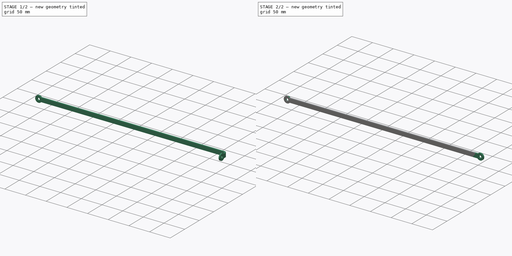
[diagram: build sequence overview — one tinted view per stage of 2, left to right]
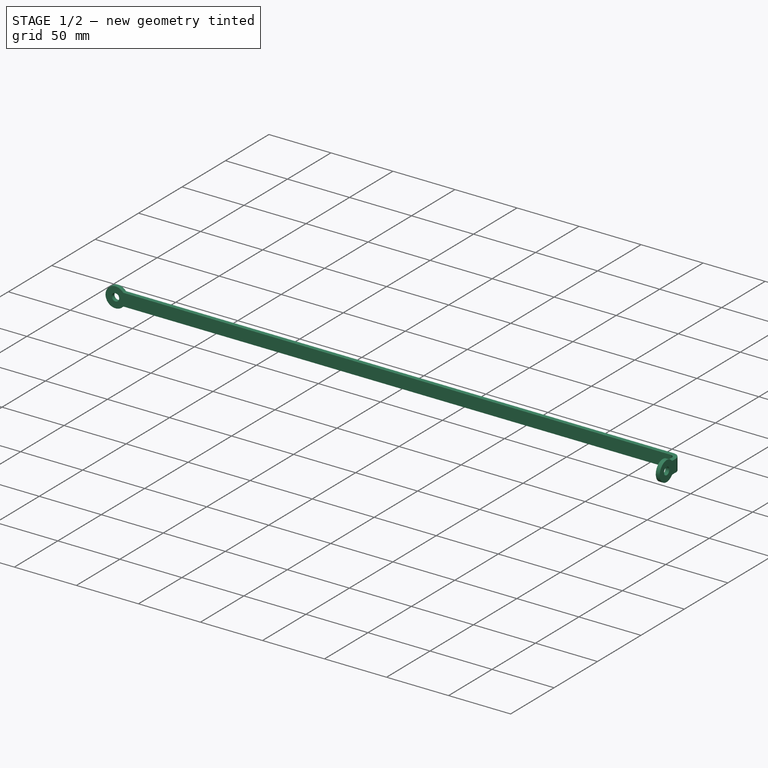
[diagram: stage 1 of 2 — iso view after this stage's code; geometry added in this stage tinted green]
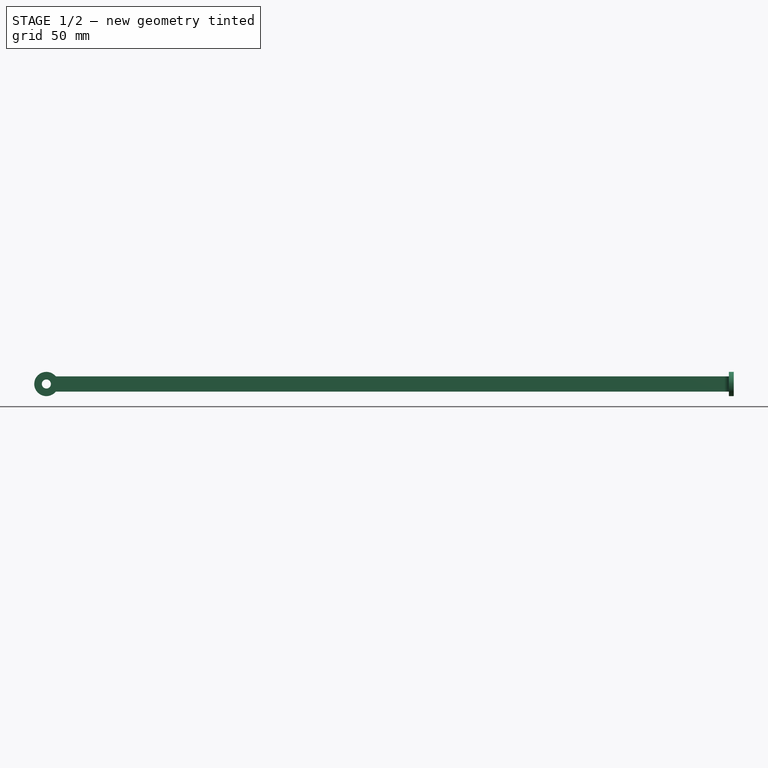
[diagram: stage 1 of 2 — front view after this stage's code; geometry added in this stage tinted green]
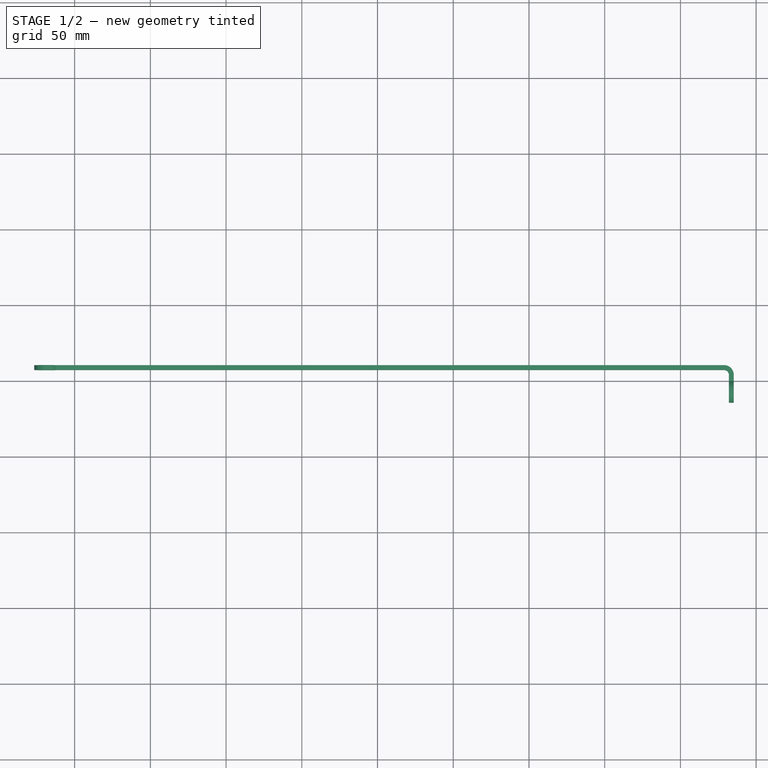
[diagram: stage 1 of 2 — top view after this stage's code; geometry added in this stage tinted green]
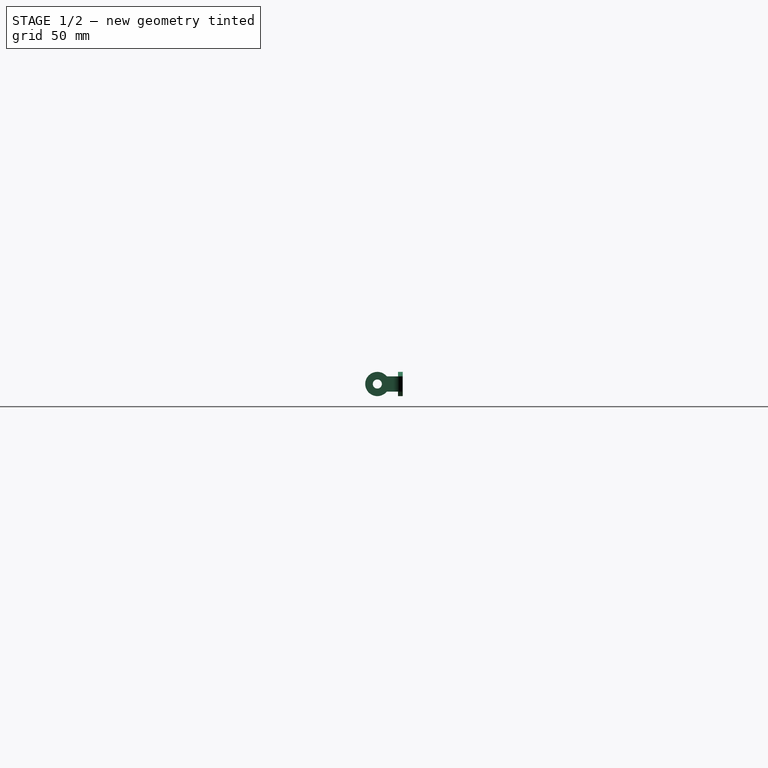
[diagram: stage 1 of 2 — right view after this stage's code; geometry added in this stage tinted green]
FCSTD DOCUMENT  (FreeCAD 1.0R38641 +468 (Git))
Label: bracket_bent
License: All rights reserved
LicenseURL: https://en.wikipedia.org/wiki/All_rights_reserved
objects: Sketcher::SketchObject×6, PartDesign::FeaturePython×3, PartDesign::SubShapeBinder×1, PartDesign::Body×1, Part::FeaturePython×1
note: 21 computed .brp shape members not serialized (recipe doc carries the construction recipe); baked Part::Feature solids carry a one-line shape summary decoded from their .brp
EXTERNAL_REF file=../../row.FCStd obj=Assembly
EXTERNAL_REF file=../dimensions.FCStd obj=VarSet

FEATURE [PartDesign::SubShapeBinder] Binder
  BindCopyOnChange = 0
  BindMode = 0
  ClaimChildren = false
  Context = -> Body [Binder.]
  Fuse = false
  MakeFace = true
  OffsetFill = false
  OffsetIntersection = false
  OffsetJoinType = 0
  OffsetOpenResult = false
  PartialLoad = false
  Refine = true
  Relative = true
  Support = -> [<external ../../row.FCStd>#Assembly]
  _Version = 2
FEATURE [Sketcher::SketchObject] Sketch
  ArcFitTolerance = 1e-06
  AttachmentOffset = pos=(0,0,30) rot=(0,0,1;0rad)
  AttachmentSupport = -> [Binder]
  ExternalGeometry = -> [Binder]
  FullyConstrained = true
  MakeInternals = false
  MapMode = 5
  Placement = pos=(0,157.227,-6.52e-14) rot=(0,0.707107,0.707107;3.14159rad)
  expr: Constraints[13] = dimensions#VarSet.FrameHoleDiameter
  expr: Constraints[14] = dimensions#VarSet.FrameMinWidth / 2
  expr: Constraints[15] = dimensions#VarSet.EnclosureCornerRadius
  expr: Constraints[5] = dimensions#VarSet.FrameMinWidth
  sketch-geometry (15):
    g0: LineSegment StartX=-428.854 StartY=-51.25 StartZ=0 EndX=1.8542 EndY=-51.25 EndZ=0
    g1: LineSegment StartX=1.8542 StartY=-61.25 StartZ=0 EndX=-428.854 EndY=-61.25 EndZ=0
    g2: ArcOfCircle CenterX=-445.651 CenterY=-56.25 CenterZ=0 NormalX=0 NormalY=0 NormalZ=1 AngleXU=0 Radius=8 StartAngle=0.739492 EndAngle=5.54369
    g3: ArcOfCircle CenterX=-438.854 CenterY=-50.05 CenterZ=0 NormalX=0 NormalY=0 NormalZ=1 AngleXU=0 Radius=1.2 StartAngle=3.88109 EndAngle=4.71239
    g4: ArcOfCircle CenterX=-438.854 CenterY=-62.45 CenterZ=0 NormalX=0 NormalY=0 NormalZ=1 AngleXU=0 Radius=1.2 StartAngle=1.5708 EndAngle=2.4021
    g5: ArcOfCircle CenterX=18.6513 CenterY=-56.25 CenterZ=0 NormalX=0 NormalY=0 NormalZ=1 AngleXU=0 Radius=8 StartAngle=3.88109 EndAngle=8.68529
    g6: ArcOfCircle CenterX=11.8542 CenterY=-62.45 CenterZ=0 NormalX=0 NormalY=0 NormalZ=1 AngleXU=0 Radius=1.2 StartAngle=0.739492 EndAngle=1.5708
    g7: ArcOfCircle CenterX=11.8542 CenterY=-50.05 CenterZ=0 NormalX=0 NormalY=0 NormalZ=1 AngleXU=0 Radius=1.2 StartAngle=4.71239 EndAngle=5.54369
    g8: Circle CenterX=18.6513 CenterY=-56.25 CenterZ=0 NormalX=0 NormalY=0 NormalZ=1 AngleXU=0 Radius=3
    g9: LineSegment StartX=-428.854 StartY=-51.25 StartZ=0 EndX=-438.854 EndY=-51.25 EndZ=0
    g10: LineSegment StartX=-428.854 StartY=-61.25 StartZ=0 EndX=-438.854 EndY=-61.25 EndZ=0
    g11: LineSegment StartX=1.8542 StartY=-51.25 StartZ=0 EndX=11.8542 EndY=-51.25 EndZ=0
    g12: LineSegment StartX=1.8542 StartY=-61.25 StartZ=0 EndX=11.8542 EndY=-61.25 EndZ=0
    g13: LineSegment [constr] StartX=-445.651 StartY=-56.25 StartZ=0 EndX=18.6513 EndY=-56.25 EndZ=0
    g14: Circle CenterX=-445.651 CenterY=-56.25 CenterZ=0 NormalX=0 NormalY=0 NormalZ=1 AngleXU=0 Radius=3
  constraints (38):
    c: PointOnObject(g0,g-3)
    c: PointOnObject(g0,g-4)
    c: Horizontal(g0)
    c: PointOnObject(g1,g-4)
    c: Horizontal(g1)
    c: Distance(g0,g1) = 10
    c: Tangent(g2,g4) = 1.5708
    c: Tangent(g3,g2) = 1.5708
    c: Equal(g6,g7)
    c: Equal(g7,g4)
    c: Equal(g4,g3)
    c: Equal(g2,g5)
    c: Coincident(g8,g5)
    c: Diameter(g8) = 6
    c: Distance(g8,g5) = 5
    c: Radius(g6) = 1.2
    c: Coincident(g9,g0)
    c: Horizontal(g9)
    c: Coincident(g10,g1)
    c: Horizontal(g10)
    c: Tangent(g4,g10) = -1.5708
    c: Tangent(g3,g9) = 1.5708
    c: Tangent(g7,g5) = 1.5708
    c: Coincident(g11,g0)
    c: Horizontal(g11)
    c: Tangent(g11,g7) = -1.5708
    c: Tangent(g6,g5) = 1.5708
    c: Coincident(g12,g1)
    c: Horizontal(g12)
    c: Tangent(g12,g6) = 1.5708
    c: Equal(g11,g9)
    c: Coincident(g13,g2)
    c: Coincident(g13,g5)
    c: Symmetric(g0,g1,g13)
    c: Symmetric(g-4,g-4,g13)
    c: Equal(g14,g8)
    c: DistanceX(g9,g9) = 10
    c: Coincident(g14,g2)
FEATURE [PartDesign::FeaturePython] BaseBend  # WARN: FeaturePython — macro-defined, semantics opaque (R4)
  BendSide = 0
  BendSketch = -> Sketch
  Length = 100
  MidPlane = false
  Radius = 1
  Reverse = false
  Suppressed = false
  Thickness = 3.175
  expr: Thickness = dimensions#VarSet.FrameMaterialThickness
FEATURE [Sketcher::SketchObject] Sketch001
  ArcFitTolerance = 1e-06
  AttachmentSupport = -> [BaseBend]
  ExternalGeometry = -> [Binder]
  FullyConstrained = true
  MakeInternals = false
  MapMode = 5
  Placement = pos=(0,157.227,0) rot=(1,0,0;1.5708rad)
  sketch-geometry (1):
    g0: LineSegment StartX=432.029 StartY=-48.25 StartZ=0 EndX=432.029 EndY=-64.25 EndZ=0
  constraints (2):
    c: Coincident(g-3,g0)
    c: Coincident(g0,g-3)
FEATURE [PartDesign::FeaturePython] Fold  # WARN: FeaturePython — macro-defined, semantics opaque (R4)
  BaseFeature = -> BaseBend
  BendLine = -> Sketch001
  Position = 0
  Suppressed = false
  angle = 90
  baseObject = -> BaseBend [Face15]
  invert = false
  invertbend = true
  kfactor = 0.5
  radius = 3.175
  unfold = false
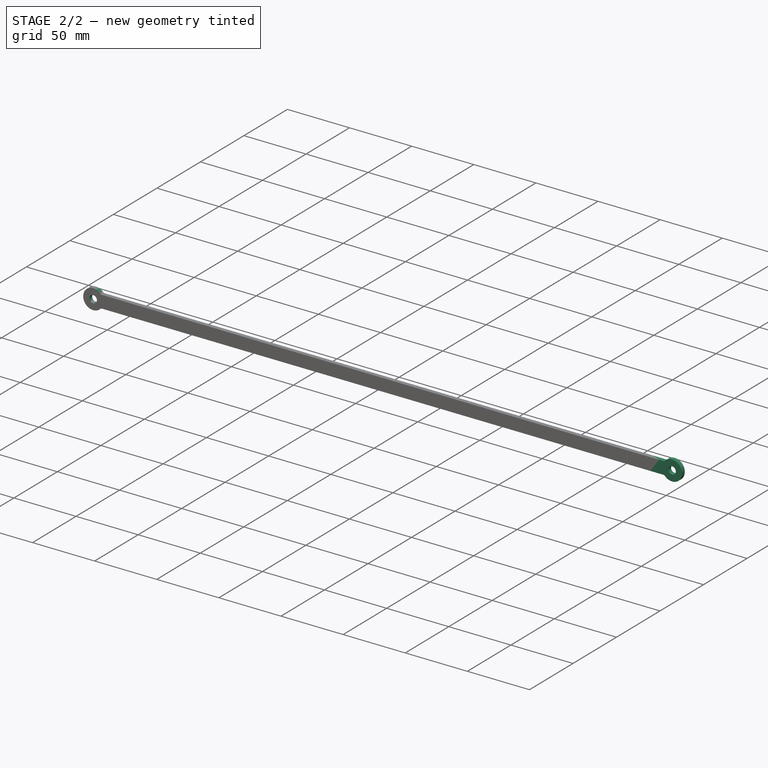
[diagram: stage 2 of 2 — iso view after this stage's code; geometry added in this stage tinted green]
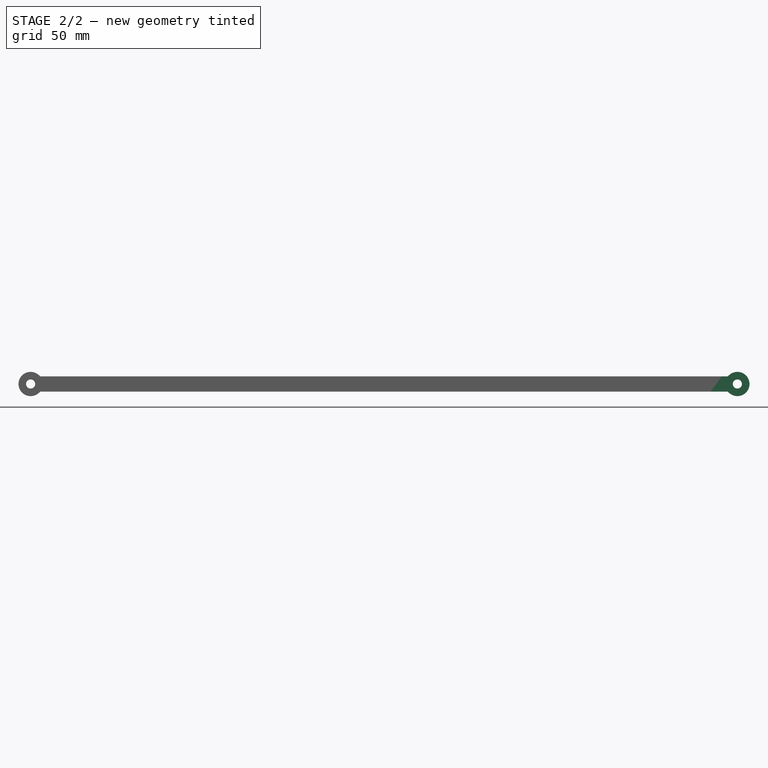
[diagram: stage 2 of 2 — front view after this stage's code; geometry added in this stage tinted green]
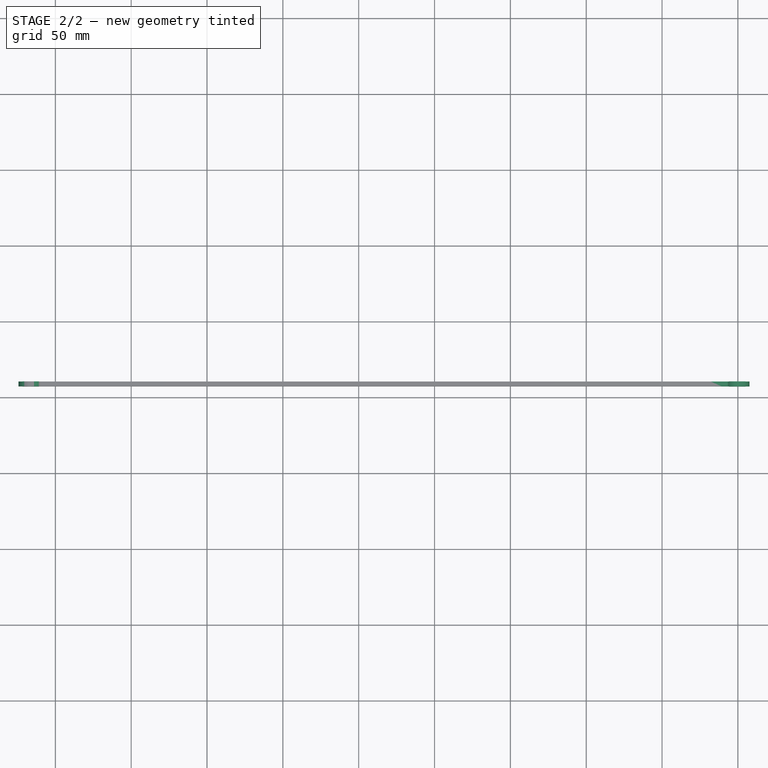
[diagram: stage 2 of 2 — top view after this stage's code; geometry added in this stage tinted green]
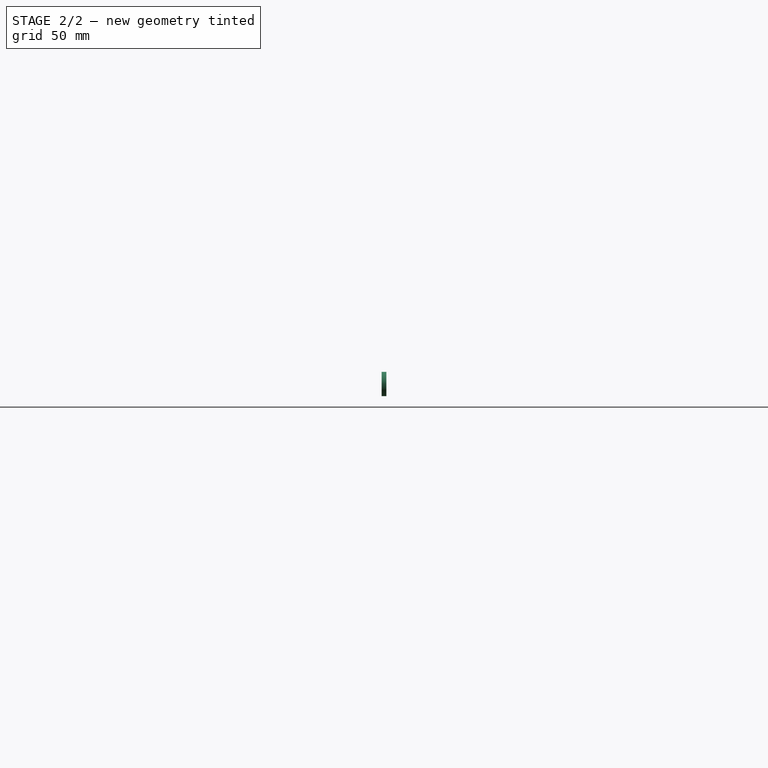
[diagram: stage 2 of 2 — right view after this stage's code; geometry added in this stage tinted green]
FEATURE [Sketcher::SketchObject] Sketch002
  ArcFitTolerance = 1e-06
  AttachmentSupport = -> [Fold]
  ExternalGeometry = -> [Binder]
  FullyConstrained = true
  MakeInternals = false
  MapMode = 5
  Placement = pos=(0,160.402,0) rot=(0,0.707107,0.707107;3.14159rad)
  sketch-geometry (1):
    g0: LineSegment StartX=5.0292 StartY=-48.25 StartZ=0 EndX=5.0292 EndY=-64.25 EndZ=0
  constraints (2):
    c: Coincident(g0,g-3)
    c: Coincident(g0,g-3)
FEATURE [PartDesign::FeaturePython] Fold001  # WARN: FeaturePython — macro-defined, semantics opaque (R4)
  BaseFeature = -> Fold
  BendLine = -> Sketch002
  Position = 0
  Suppressed = false
  angle = -90
  baseObject = -> Fold [Face22]
  invert = false
  invertbend = false
  kfactor = 0.5
  radius = 3.175
  unfold = false
FEATURE [PartDesign::Body] Body  label="BracketBent"
  AllowCompound = false
  Group = -> [Binder,Sketch,BaseBend,Sketch001,Fold,Sketch002,Fold001]
  Origin = -> Origin
  Tip = -> Fold001
FEATURE [Part::FeaturePython] BracketBent_Unfold  # WARN: FeaturePython — macro-defined, semantics opaque (R4)
  GenerateSketch = true
  KFactor = 0.44
  KFactorStandard = 0
  ManualRecompute = false
  MaterialSheet = _manual
  SeparateSketchLayers = true
  UnfoldSketches = Unfold_Sketch | Unfold_Sketch_Bends | Unfold_Sketch_Holes
  baseObject = -> Body [Fold001.Face2]
FEATURE [Sketcher::SketchObject] Unfold_Sketch
  ArcFitTolerance = 1e-06
  FullyConstrained = false
  MakeInternals = false
  sketch-geometry (16):
    g0: ArcOfCircle CenterX=14.2 CenterY=467.169 CenterZ=0 NormalX=0 NormalY=1e-16 NormalZ=1 AngleXU=0.739492 Radius=1.2 StartAngle=0 EndAngle=0.831304
    g1: LineSegment StartX=13 StartY=467.169 StartZ=0 EndX=13 EndY=463.519 EndZ=0
    g2: LineSegment StartX=13 StartY=463.519 StartZ=0 EndX=13 EndY=456.337 EndZ=0
    g3: LineSegment StartX=13 StartY=456.337 StartZ=0 EndX=13 EndY=25.6287 EndZ=0
    g4: LineSegment StartX=13 StartY=25.6287 StartZ=0 EndX=13 EndY=18.4471 EndZ=0
    g5: LineSegment StartX=13 StartY=18.4471 StartZ=0 EndX=13 EndY=14.7971 EndZ=0
    g6: ArcOfCircle CenterX=14.2 CenterY=14.7971 CenterZ=0 NormalX=0 NormalY=1e-16 NormalZ=1 AngleXU=1.5708 Radius=1.2 StartAngle=0 EndAngle=0.831304
    g7: ArcOfCircle CenterX=8 CenterY=8 CenterZ=0 NormalX=0 NormalY=-1e-16 NormalZ=-1 AngleXU=-2.4021 Radius=8 StartAngle=0 EndAngle=4.8042
    g8: ArcOfCircle CenterX=1.8 CenterY=14.7971 CenterZ=0 NormalX=0 NormalY=1e-16 NormalZ=1 AngleXU=-2.4021 Radius=1.2 StartAngle=0 EndAngle=0.831304
    g9: LineSegment StartX=3 StartY=14.7971 StartZ=0 EndX=3 EndY=18.4471 EndZ=0
    g10: LineSegment StartX=3 StartY=18.4471 StartZ=0 EndX=3 EndY=25.6287 EndZ=0
    g11: LineSegment StartX=3 StartY=25.6287 StartZ=0 EndX=3 EndY=456.337 EndZ=0
    g12: LineSegment StartX=3 StartY=456.337 StartZ=0 EndX=3 EndY=463.519 EndZ=0
    g13: LineSegment StartX=3 StartY=463.519 StartZ=0 EndX=3 EndY=467.169 EndZ=0
    g14: ArcOfCircle CenterX=1.8 CenterY=467.169 CenterZ=0 NormalX=0 NormalY=1e-16 NormalZ=1 AngleXU=-1.5708 Radius=1.2 StartAngle=0 EndAngle=0.831304
    g15: ArcOfCircle CenterX=8 CenterY=473.966 CenterZ=0 NormalX=0 NormalY=-1e-16 NormalZ=-1 AngleXU=0.739492 Radius=8 StartAngle=0 EndAngle=4.8042
FEATURE [Sketcher::SketchObject] Unfold_Sketch_Bends
  ArcFitTolerance = 1e-06
  FullyConstrained = false
  MakeInternals = false
  sketch-geometry (2):
    g0: LineSegment StartX=3 StartY=22.0379 StartZ=0 EndX=13 EndY=22.0379 EndZ=0
    g1: LineSegment StartX=13 StartY=459.928 StartZ=0 EndX=3 EndY=459.928 EndZ=0
FEATURE [Sketcher::SketchObject] Unfold_Sketch_Holes
  ArcFitTolerance = 1e-06
  FullyConstrained = false
  MakeInternals = false
  sketch-geometry (2):
    g0: Circle CenterX=8 CenterY=473.966 CenterZ=0 NormalX=0 NormalY=0 NormalZ=1 AngleXU=0 Radius=3
    g1: Circle CenterX=8 CenterY=8 CenterZ=0 NormalX=0 NormalY=0 NormalZ=1 AngleXU=0 Radius=3
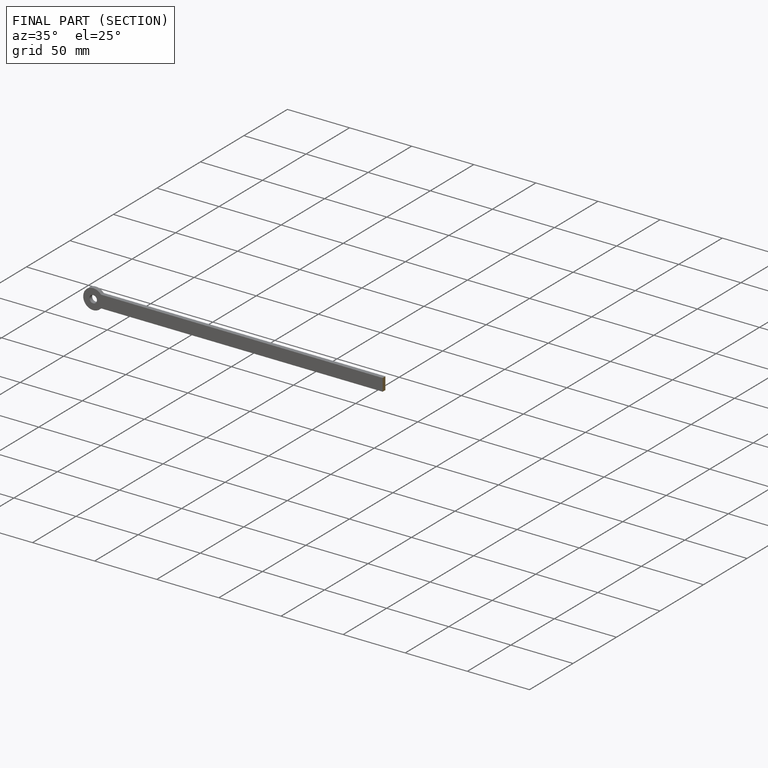
[diagram: finished part — half-section view (interior)]
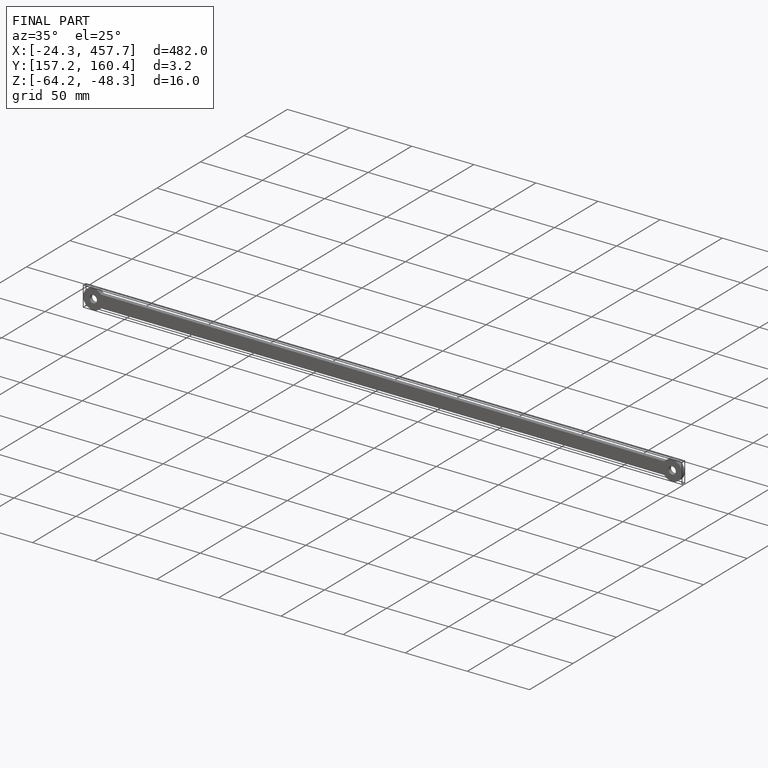
[diagram: finished part — iso view with bounding-box wireframe]
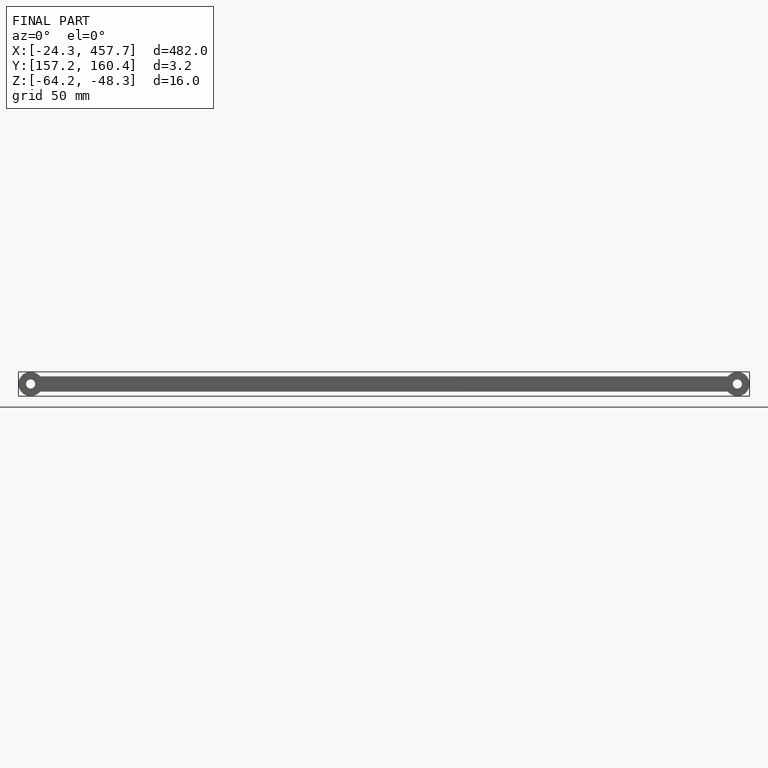
[diagram: finished part — front view with bounding-box wireframe]
